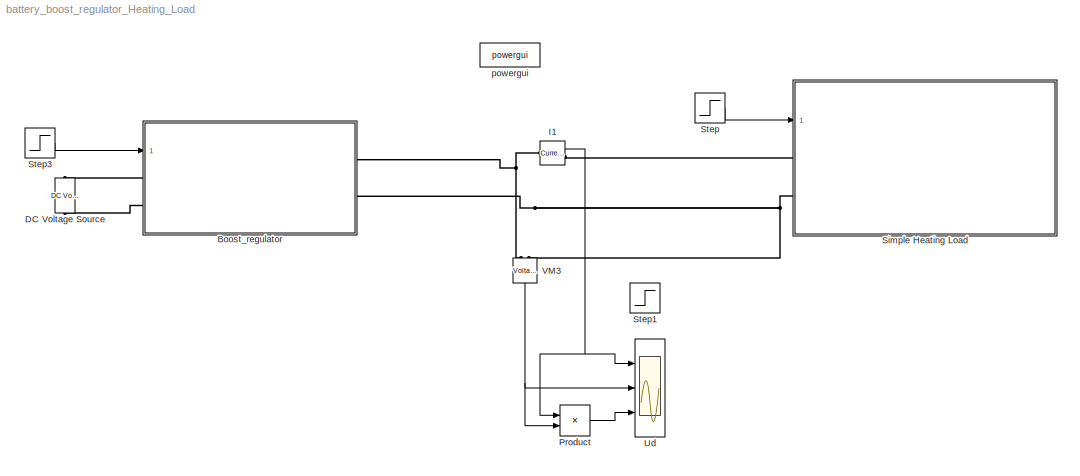
MODEL battery_boost_regulator_Heating_Load
KIND model
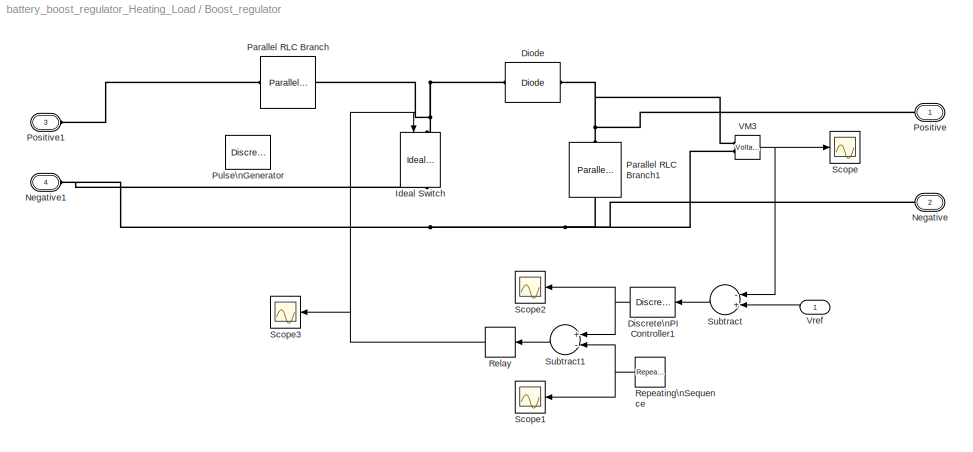
BLOCK [SubSystem] Boost_regulator
  Ports = [1, 0, 0, 0, 0, 2, 2]
  RequestExecContextInheritance = off
  SID = 32
BLOCK [Reference] Boost_regulator/Diode  REF=powerlib/Power\nElectronics/Diode
  Cs = 250e-9
  IC = 0
  Lon = 0
  Measurements = off
  Ports = [0, 0, 0, 0, 0, 1, 1]
  Ron = 0.001
  Rs = 50000
  SID = 34
  SourceBlock = powerlib/Power\nElectronics/Diode
  SourceProductBaseCode = PS
  SourceProductName = Simscape Electrical
  SourceType = Diode
  UseSnubber = 0
  Vf = 0
BLOCK [Reference] Boost_regulator/Discrete\nPI Controller1  REF=powerlib_extras/Discrete \nControl Blocks/Discrete\nPI Controller
  Init = 0
  Ki = 0.2
  Kp = 0.001
  Par_Limits = [10 -10]
  Ports = [1, 1]
  SID = 35
  SourceBlock = powerlib_extras/Discrete \nControl Blocks/Discrete\nPI Controller
  SourceProductBaseCode = PS
  SourceProductName = Simscape Electrical
  SourceType = Discrete PI Controller
  Ts = 1e-6
BLOCK [Reference] Boost_regulator/Ideal Switch  REF=powerlib/Power\nElectronics/Ideal Switch
  Cs = inf
  IC = 0
  Lon = 0
  Measurements = on
  Ports = [1, 1, 0, 0, 0, 1, 1]
  Ron = 0.001
  Rs = 1e5
  SID = 36
  SourceBlock = powerlib/Power\nElectronics/Ideal Switch
  SourceProductBaseCode = PS
  SourceProductName = Simscape Electrical
  SourceType = Ideal Switch
BLOCK [PMIOPort] Boost_regulator/Negative
  Port = 2
  SID = 50
  Side = Right
  Tag = PMCPort
BLOCK [PMIOPort] Boost_regulator/Negative1
  Port = 4
  SID = 52
  Side = Left
  Tag = PMCPort
BLOCK [Reference] Boost_regulator/Parallel RLC Branch  REF=powerlib/Elements/Parallel RLC Branch
  AttributesFormatString = \\n
  BranchType = L
  Capacitance = 1e-6
  Inductance = 1e-3
  InitialCurrent = 0
  InitialVoltage = 0
  LConnTagsString = a
  Measurements = None
  Ports = [0, 0, 0, 0, 0, 1, 1]
  RConnTagsString = __new0
  Resistance = 1
  SID = 37
  SetiL0 = off
  Setx0 = off
  SourceBlock = powerlib/Elements/Parallel RLC Branch
  SourceProductBaseCode = PS
  SourceProductName = Simscape Electrical
  SourceType = Parallel RLC Branch
BLOCK [Reference] Boost_regulator/Parallel RLC Branch1  REF=powerlib/Elements/Parallel RLC Branch
  AttributesFormatString = \\n
  BranchType = C
  Capacitance = 1e-3
  Inductance = 1e-3
  InitialCurrent = 0
  InitialVoltage = 100
  LConnTagsString = a
  Measurements = None
  Ports = [0, 0, 0, 0, 0, 1, 1]
  RConnTagsString = __new0
  Resistance = 1
  SID = 38
  SetiL0 = off
  Setx0 = on
  SourceBlock = powerlib/Elements/Parallel RLC Branch
  SourceProductBaseCode = PS
  SourceProductName = Simscape Electrical
  SourceType = Parallel RLC Branch
BLOCK [PMIOPort] Boost_regulator/Positive
  SID = 49
  Side = Right
  Tag = PMCPort
BLOCK [PMIOPort] Boost_regulator/Positive1
  Port = 3
  SID = 51
  Side = Left
  Tag = PMCPort
BLOCK [DiscretePulseGenerator] Boost_regulator/Pulse\nGenerator
  Period = 1e-3
  Ports = [0, 1]
  PulseType = Time based
  PulseWidth = 90
  SID = 39
BLOCK [Relay] Boost_regulator/Relay
  OffSwitchValue = -0.01
  OnSwitchValue = 0.01
  SID = 40
BLOCK [Reference] Boost_regulator/Repeating\nSequence  REF=simulink/Sources/Repeating\nSequence
  Ports = [0, 1]
  SID = 41
  SourceBlock = simulink/Sources/Repeating\nSequence
  SourceProductBaseCode = SL
  SourceProductName = Simulink
  SourceType = Repeating table
  rep_seq_t = [0 1e-3 2e-3]
  rep_seq_y = [-10 10 -10]
BLOCK [Scope] Boost_regulator/Scope
  Floating = off
  NumInputPorts = 1
  Ports = [1]
  SID = 42
  ScopeSpecificationString = C++SS(StrPVP('Location','[5, 56, 1277, 765]'),StrPVP('Open','off'),MxPVP('AxesTitles',53,'struct(''axes1'',''%<SignalLabel>'')'),StrPVP('YMin','0.135'),StrPVP('YMax','0.225'),StrPVP('DataFormat','StructureWithTime'),StrPVP('MaxDataPoints','50000000'),StrPVP('BlockParamSampleTime','0'),StrPVP('LimitDataPoints','on'),StrPVP('Decimation','1'),StrPVP('BlockParamSampleInput','off'))
BLOCK [Scope] Boost_regulator/Scope1
  Floating = off
  NumInputPorts = 1
  Ports = [1]
  SID = 43
  ScopeSpecificationString = C++SS(StrPVP('Location','[5, 56, 1285, 773]'),StrPVP('Open','off'),MxPVP('AxesTitles',53,'struct(''axes1'',''%<SignalLabel>'')'),StrPVP('YMin','-1'),StrPVP('YMax','1'),StrPVP('SaveName','ScopeData1'),StrPVP('DataFormat','StructureWithTime'),StrPVP('MaxDataPoints','50000000'),StrPVP('BlockParamSampleTime','0'),StrPVP('LimitDataPoints','on'),StrPVP('Decimation','1'),StrPVP('BlockParamSampleInput','o...<+5ch>
BLOCK [Scope] Boost_regulator/Scope2
  Floating = off
  NumInputPorts = 1
  Ports = [1]
  SID = 44
  ScopeSpecificationString = C++SS(StrPVP('Location','[5, 56, 1285, 773]'),StrPVP('Open','off'),MxPVP('AxesTitles',53,'struct(''axes1'',''%<SignalLabel>'')'),StrPVP('YMin','10'),StrPVP('YMax','10'),StrPVP('SaveName','ScopeData2'),StrPVP('DataFormat','StructureWithTime'),StrPVP('MaxDataPoints','50000000'),StrPVP('BlockParamSampleTime','0'),StrPVP('LimitDataPoints','on'),StrPVP('Decimation','1'),StrPVP('BlockParamSampleInput','...<+6ch>
BLOCK [Scope] Boost_regulator/Scope3
  Floating = off
  NumInputPorts = 1
  Ports = [1]
  SID = 45
  ScopeSpecificationString = C++SS(StrPVP('Location','[5, 56, 1285, 773]'),StrPVP('Open','off'),MxPVP('AxesTitles',53,'struct(''axes1'',''%<SignalLabel>'')'),StrPVP('YMin','0'),StrPVP('YMax','1'),StrPVP('SaveName','ScopeData3'),StrPVP('DataFormat','StructureWithTime'),StrPVP('MaxDataPoints','50000000'),StrPVP('BlockParamSampleTime','0'),StrPVP('LimitDataPoints','on'),StrPVP('Decimation','1'),StrPVP('BlockParamSampleInput','of...<+4ch>
BLOCK [Sum] Boost_regulator/Subtract
  InputSameDT = off
  Inputs = -+
  OutDataTypeStr = Inherit: Inherit via internal rule
  Ports = [2, 1]
  SID = 46
  SaturateOnIntegerOverflow = off
BLOCK [Sum] Boost_regulator/Subtract1
  InputSameDT = off
  Inputs = +-
  OutDataTypeStr = Inherit: Inherit via internal rule
  Ports = [2, 1]
  SID = 47
  SaturateOnIntegerOverflow = off
BLOCK [Reference] Boost_regulator/VM3  REF=powerlib/Measurements/Voltage Measurement
  OutputType = Complex
  PSBequivalent = 0
  PhasorSimulation = off
  Ports = [0, 1, 0, 0, 0, 2]
  SID = 48
  SourceBlock = powerlib/Measurements/Voltage Measurement
  SourceProductBaseCode = PS
  SourceProductName = Simscape Electrical
  SourceType = Voltage Measurement
BLOCK [Inport] Boost_regulator/Vref
  IconDisplay = Port number
  SID = 33
BLOCK [Reference] DC Voltage Source  REF=powerlib/Electrical\nSources/DC Voltage Source
  Amplitude = 45
  Measurements = None
  Ports = [0, 0, 0, 0, 0, 1, 1]
  SID = 53
  SourceBlock = powerlib/Electrical\nSources/DC Voltage Source
  SourceProductBaseCode = PS
  SourceProductName = Simscape Electrical
  SourceType = DC Voltage Source
BLOCK [Reference] I1  REF=powerlib/Measurements/Current Measurement
  AttributesFormatString = \\n
  OutputType = Magnitude
  PSBequivalent = 0
  PhasorSimulation = off
  Ports = [0, 1, 0, 0, 0, 1, 1]
  SID = 54
  SourceBlock = powerlib/Measurements/Current Measurement
  SourceProductBaseCode = PS
  SourceProductName = Simscape Electrical
  SourceType = Current Measurement
  Tag = PoWeRsYsTeMmEaSuReMeNt
BLOCK [Product] Product
  InputSameDT = off
  OutDataTypeStr = Inherit: Inherit via internal rule
  Ports = [2, 1]
  SID = 81
  SaturateOnIntegerOverflow = off
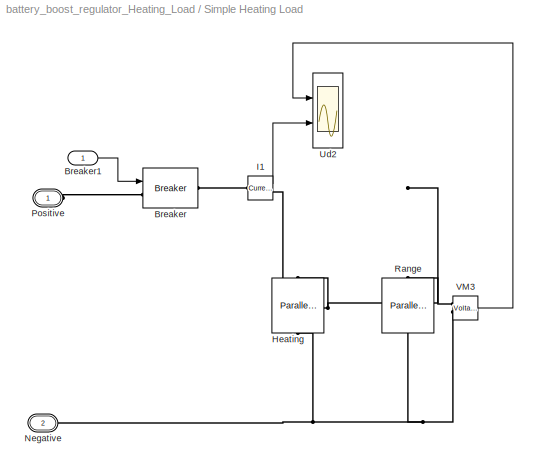
BLOCK [SubSystem] Simple Heating Load
  Ports = [1, 0, 0, 0, 0, 2]
  RequestExecContextInheritance = off
  SID = 55
BLOCK [Reference] Simple Heating Load/Breaker  REF=powerlib/Elements/Breaker
  BreakerResistance = 0.01
  External = on
  InitialState = 0
  Measurements = None
  MoreParameters = off
  NoBreakLoop = off
  Ports = [1, 0, 0, 0, 0, 1, 1]
  SID = 57
  SnubberCapacitance = inf
  SnubberResistance = 1e6
  SourceBlock = powerlib/Elements/Breaker
  SourceProductBaseCode = PS
  SourceProductName = Simscape Electrical
  SourceType = Breaker
  SwitchingTimes = [ 1/60  5/60 ]
BLOCK [Inport] Simple Heating Load/Breaker1
  IconDisplay = Port number
  SID = 56
BLOCK [Reference] Simple Heating Load/Heating  REF=powerlib/Elements/Parallel RLC Branch
  AttributesFormatString = \\n
  BranchType = R
  Capacitance = 1e-6
  Inductance = 1e-3
  InitialCurrent = 0
  InitialVoltage = 0
  LConnTagsString = a
  Measurements = None
  Ports = [0, 0, 0, 0, 0, 1, 1]
  RConnTagsString = __new0
  Resistance = 90
  SID = 58
  SetiL0 = off
  Setx0 = off
  SourceBlock = powerlib/Elements/Parallel RLC Branch
  SourceProductBaseCode = PS
  SourceProductName = Simscape Electrical
  SourceType = Parallel RLC Branch
BLOCK [Reference] Simple Heating Load/I1  REF=powerlib/Measurements/Current Measurement
  AttributesFormatString = \\n
  OutputType = Magnitude
  PSBequivalent = 0
  PhasorSimulation = off
  Ports = [0, 1, 0, 0, 0, 1, 1]
  SID = 59
  SourceBlock = powerlib/Measurements/Current Measurement
  SourceProductBaseCode = PS
  SourceProductName = Simscape Electrical
  SourceType = Current Measurement
  Tag = PoWeRsYsTeMmEaSuReMeNt
BLOCK [PMIOPort] Simple Heating Load/Negative
  Port = 2
  SID = 64
  Side = Left
  Tag = PMCPort
BLOCK [PMIOPort] Simple Heating Load/Positive
  SID = 63
  Side = Left
  Tag = PMCPort
BLOCK [Reference] Simple Heating Load/Range  REF=powerlib/Elements/Parallel RLC Branch
  AttributesFormatString = \\n
  BranchType = R
  Capacitance = 1e-6
  Inductance = 1e-3
  InitialCurrent = 0
  InitialVoltage = 0
  LConnTagsString = a
  Measurements = None
  Ports = [0, 0, 0, 0, 0, 1, 1]
  RConnTagsString = __new0
  Resistance = 90
  SID = 60
  SetiL0 = off
  Setx0 = off
  SourceBlock = powerlib/Elements/Parallel RLC Branch
  SourceProductBaseCode = PS
  SourceProductName = Simscape Electrical
  SourceType = Parallel RLC Branch
BLOCK [Scope] Simple Heating Load/Ud2
  Floating = off
  NumInputPorts = 2
  Ports = [2]
  SID = 61
  ScopeSpecificationString = C++SS(StrPVP('Location','[5, 56, 1285, 773]'),StrPVP('Open','off'),MxPVP('AxesTitles',53,'struct(''axes1'',''%<SignalLabel>'',''axes2'',''%<SignalLabel>'')'),StrPVP('TimeRange','0.4'),StrPVP('YMin','0.01488~0.00033075'),StrPVP('YMax','0.01507~0.00033475'),StrPVP('SaveName','ScopeData9'),StrPVP('DataFormat','StructureWithTime'),StrPVP('LimitDataPoints','off'),StrPVP('MaxDataPoints','20000'),StrPVP(...<+93ch>
BLOCK [Reference] Simple Heating Load/VM3  REF=powerlib/Measurements/Voltage Measurement
  OutputType = Complex
  PSBequivalent = 0
  PhasorSimulation = off
  Ports = [0, 1, 0, 0, 0, 2]
  SID = 62
  SourceBlock = powerlib/Measurements/Voltage Measurement
  SourceProductBaseCode = PS
  SourceProductName = Simscape Electrical
  SourceType = Voltage Measurement
BLOCK [Step] Step
  SID = 100
  SampleTime = 0
  Time = 0.1
BLOCK [Step] Step1
  SID = 101
  SampleTime = 0
  Time = 0.3
BLOCK [Step] Step3
  After = 300
  SID = 103
  SampleTime = 0
  Time = 0
BLOCK [Scope] Ud
  Floating = off
  NumInputPorts = 3
  Ports = [3]
  SID = 104
  ScopeSpecificationString = Simulink.scopes.TimeScopeBlockCfg('CurrentConfiguration', extmgr.ConfigurationSet(extmgr.Configuration('Core','General UI',true),extmgr.Configuration('Core','Source UI',true),extmgr.Configuration('Sources','WiredSimulink',true,'DataLoggingVariableName','ScopeData2','DataLoggingSaveFormat','StructureWithTime','DataLoggingMaxPoints','20000','SampleTime','1e-5','DataLoggingDecimation','1','DataLoggin...<+3143ch>
BLOCK [Reference] VM3  REF=powerlib/Measurements/Voltage Measurement
  OutputType = Complex
  PSBequivalent = 0
  PhasorSimulation = off
  Ports = [0, 1, 0, 0, 0, 2]
  SID = 105
  SourceBlock = powerlib/Measurements/Voltage Measurement
  SourceProductBaseCode = PS
  SourceProductName = Simscape Electrical
  SourceType = Voltage Measurement
BLOCK [Reference] powergui  REF=powerlib/powergui
  AutomaticDiscreteSolvers = off
  ContinueOnMaxIteration = off
  CurrentSourceSwitches = off
  DisableRonSwitches = off
  DisableSnubberDevices = off
  DisableVfSwitches = off
  DisplayEquations = off
  DisplayStyle = 1
  EnableUseOfTLC = off
  ErrMax = 1e-4
  ExternalGateDelay = off
  Frange = [0:2:500]
  FreqAxis = off
  FunctionMessages = off
  HookPort = off
  Interpol = off
  Iterations = 50
  MaxFrequency = 1000
  NonlinearTolerance = 0
  Pbase = 100e6
  Ports = []
  ResistiveCurrentMeasurement = off
  RestoreLinks = warning
  RmsSteady = 1
  SID = 312
  SPID = on
  SampleTime = 1e-5
  ShowGrid = off
  SolverType = Tustin/Backward Euler (TBE)
  SourceBlock = powerlib/powergui
  SourceProductBaseCode = PS
  SourceProductName = Simscape Electrical
  SourceType = PSB option menu block
  StartTime = 0.0
  SwTol = 0
  Ts = 0
  UnitsV = kV
  UnitsW = MW
  Xlog = on
  Ylog = off
  ZoomFFT = on
  buscounter = 0
  cycles = 1
  display = off
  echomessages = off
  frequency = 60
  frequencyindice = 0
  frequencyindicesteady = 1
  fundamental = 60
  methode = off
  nMaxIteration = 15
  save = off
  structure = 0
  variable = ZData
  x0status = blocks
NET Boost_regulator/Discrete\nPI Controller1:1 -> Boost_regulator/Scope2:1, Boost_regulator/Subtract1:1
NET Boost_regulator/Relay:1 -> Boost_regulator/Ideal Switch:1, Boost_regulator/Scope3:1
NET Boost_regulator/Repeating\nSequence:1 -> Boost_regulator/Scope1:1, Boost_regulator/Subtract1:2
LINE Boost_regulator/Subtract1:1 -> Boost_regulator/Relay:1
LINE Boost_regulator/Subtract:1 -> Boost_regulator/Discrete\nPI Controller1:1
NET Boost_regulator/VM3:1 -> Boost_regulator/Scope:1, Boost_regulator/Subtract:1
LINE Boost_regulator/Vref:1 -> Boost_regulator/Subtract:2
NET I1:1 -> Product:1, Ud:1
LINE Product:1 -> Ud:3
LINE Simple Heating Load/Breaker1:1 -> Simple Heating Load/Breaker:1
LINE Simple Heating Load/I1:1 -> Simple Heating Load/Ud2:2
LINE Simple Heating Load/VM3:1 -> Simple Heating Load/Ud2:1
LINE Step3:1 -> Boost_regulator:1
LINE Step:1 -> Simple Heating Load:1
NET VM3:1 -> Product:2, Ud:2
PNET net1: Boost_regulator/Diode:LConn1 -- Boost_regulator/Ideal Switch:LConn1 -- Boost_regulator/Parallel RLC Branch:LConn1
PNET net2: Boost_regulator/Diode:RConn1 -- Boost_regulator/Parallel RLC Branch1:LConn1 -- Boost_regulator/Positive:RConn1 -- Boost_regulator/VM3:LConn1
PNET net3: Boost_regulator/Ideal Switch:RConn1 -- Boost_regulator/Negative1:RConn1 -- Boost_regulator/Negative:RConn1 -- Boost_regulator/Parallel RLC Branch1:RConn1 -- Boost_regulator/VM3:LConn2
PLINE Boost_regulator/Parallel RLC Branch:RConn1 -- Boost_regulator/Positive1:RConn1
PLINE Boost_regulator:LConn1 -- DC Voltage Source:RConn1
PLINE Boost_regulator:LConn2 -- DC Voltage Source:LConn1
PNET net4: Boost_regulator:RConn1 -- I1:LConn1 -- VM3:LConn1
PNET net5: Boost_regulator:RConn2 -- Simple Heating Load:LConn2 -- VM3:LConn2
PLINE I1:RConn1 -- Simple Heating Load:LConn1
PLINE Simple Heating Load/Breaker:LConn1 -- Simple Heating Load/Positive:RConn1
PLINE Simple Heating Load/Breaker:RConn1 -- Simple Heating Load/I1:LConn1
PNET net6: Simple Heating Load/Heating:LConn1 -- Simple Heating Load/I1:RConn1 -- Simple Heating Load/Range:LConn1 -- Simple Heating Load/VM3:LConn1
PNET net7: Simple Heating Load/Heating:RConn1 -- Simple Heating Load/Negative:RConn1 -- Simple Heating Load/Range:RConn1 -- Simple Heating Load/VM3:LConn2
note: NET lines group one-source signal fan-out (src -> all destinations, sorted); 1:1 wires keep LINE; PNET lines group multi-terminal physical nets as a canonical sorted terminal list (undirected conserving connections); 2-terminal nets keep the pairwise PLINE form
